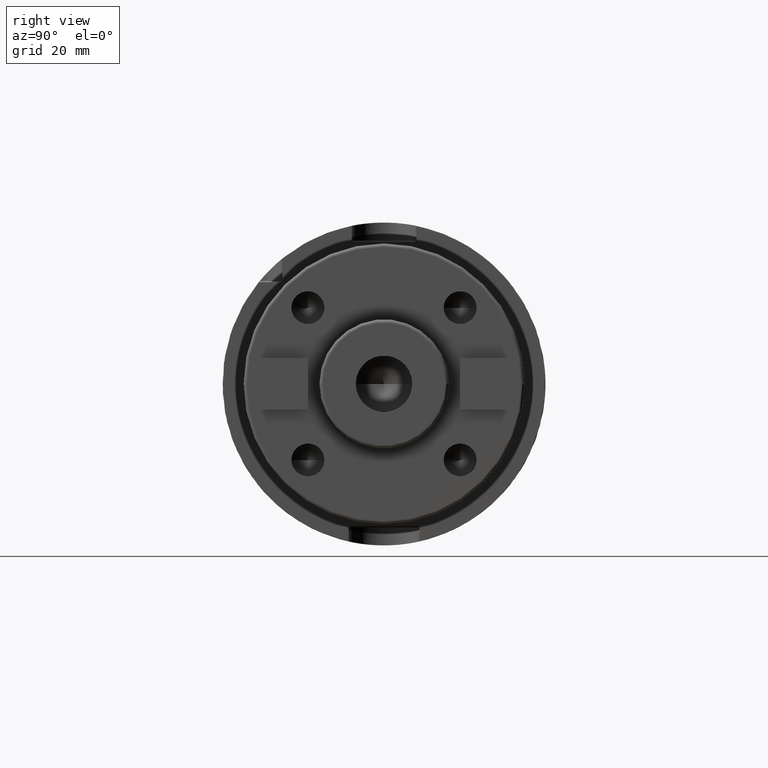
[diagram: clean part render]
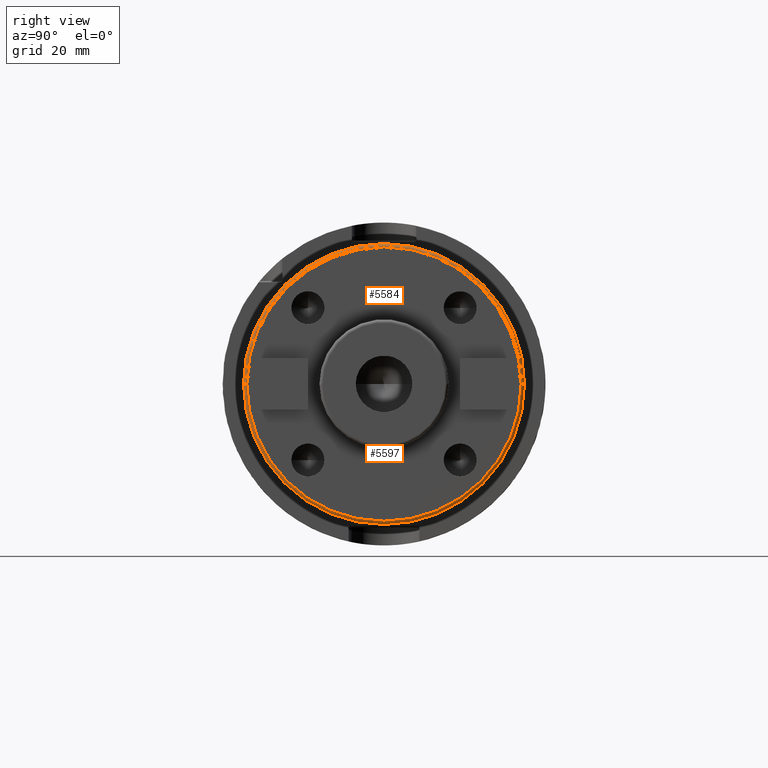
[diagram: same view with one multi-face feature highlighted, each face labeled with its STEP entity id]
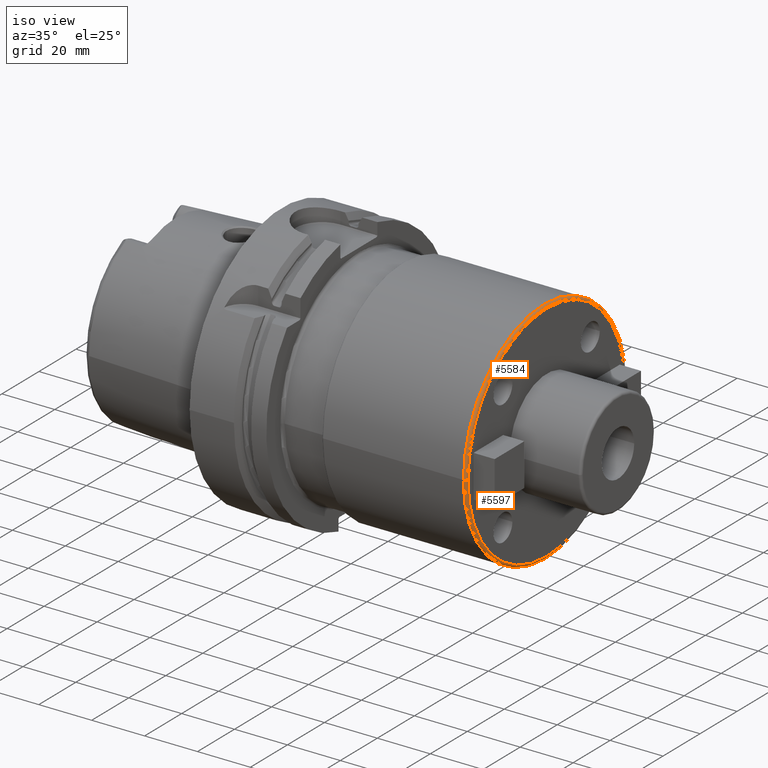
[diagram: same view with one multi-face feature highlighted, each face labeled with its STEP entity id]
A machine part, right view. The highlighted faces form ONE feature: a constant-radius fillet chain: 2 tangent blend faces with common blend radius 1 mm. The faces share edges in the B-rep.
A second angle (iso view) of the same feature is appended — it is thin or edge-on in the first view.
Their STEP definitions:
[1] entity #5584 (Torus):
#1906=CARTESIAN_POINT('',(9.9E1,0.E0,0.E0));
#1907=DIRECTION('',(-1.E0,0.E0,0.E0));
#1908=DIRECTION('',(0.E0,-1.E0,0.E0));
#1909=AXIS2_PLACEMENT_3D('',#1906,#1907,#1908);
#1916=CARTESIAN_POINT('',(9.9E1,-4.25E1,-8.289757769120E-13));
#1917=DIRECTION('',(0.E0,-1.950523076388E-14,1.E0));
#1918=DIRECTION('',(0.E0,-1.E0,-1.950523076388E-14));
#1919=AXIS2_PLACEMENT_3D('',#1916,#1917,#1918);
#1921=CARTESIAN_POINT('',(9.9E1,4.25E1,8.356509928475E-13));
#1922=DIRECTION('',(0.E0,1.966244007889E-14,-1.E0));
#1923=DIRECTION('',(0.E0,1.E0,1.966244007889E-14));
#1924=AXIS2_PLACEMENT_3D('',#1921,#1922,#1923);
#1941=CARTESIAN_POINT('',(1.E2,0.E0,0.E0));
#1942=DIRECTION('',(-1.E0,0.E0,0.E0));
#1943=DIRECTION('',(0.E0,-1.E0,0.E0));
#1944=AXIS2_PLACEMENT_3D('',#1941,#1942,#1943);
#3475=CARTESIAN_POINT('',(9.9E1,4.35E1,0.E0));
#3476=CARTESIAN_POINT('',(9.9E1,-4.35E1,-1.065442715258E-14));
#3477=VERTEX_POINT('',#3475);
#3478=VERTEX_POINT('',#3476);
#3479=CARTESIAN_POINT('',(1.E2,4.25E1,0.E0));
#3480=CARTESIAN_POINT('',(1.E2,-4.25E1,-1.040949779275E-14));
#3481=VERTEX_POINT('',#3479);
#3482=VERTEX_POINT('',#3480);
#5570=CARTESIAN_POINT('',(9.9E1,0.E0,0.E0));
#5571=DIRECTION('',(1.E0,0.E0,0.E0));
#5572=DIRECTION('',(0.E0,-9.999985559381E-1,-1.699447457826E-3));
#5573=AXIS2_PLACEMENT_3D('',#5570,#5571,#5572);
#5574=TOROIDAL_SURFACE('',#5573,4.25E1,1.E0);
#5575=ORIENTED_EDGE('',*,*,#5552,.T.);
#5577=ORIENTED_EDGE('',*,*,#5576,.T.);
#5579=ORIENTED_EDGE('',*,*,#5578,.F.);
#5581=ORIENTED_EDGE('',*,*,#5580,.F.);
#5582=EDGE_LOOP('',(#5575,#5577,#5579,#5581));
#5583=FACE_OUTER_BOUND('',#5582,.F.);
#5584=ADVANCED_FACE('',(#5583),#5574,.T.);
#1910=CIRCLE('',#1909,4.35E1);
#1920=CIRCLE('',#1919,1.E0);
#1925=CIRCLE('',#1924,1.E0);
#1945=CIRCLE('',#1944,4.25E1);
#5552=EDGE_CURVE('',#3478,#3477,#1910,.T.);
#5576=EDGE_CURVE('',#3477,#3481,#1925,.T.);
#5578=EDGE_CURVE('',#3482,#3481,#1945,.T.);
#5580=EDGE_CURVE('',#3478,#3482,#1920,.T.);
[2] entity #5597 (Torus):
#1892=CARTESIAN_POINT('',(9.9E1,0.E0,0.E0));
#1893=DIRECTION('',(-1.E0,0.E0,0.E0));
#1894=DIRECTION('',(0.E0,1.E0,0.E0));
#1895=AXIS2_PLACEMENT_3D('',#1892,#1893,#1894);
#1916=CARTESIAN_POINT('',(9.9E1,-4.25E1,-8.289757769120E-13));
#1917=DIRECTION('',(0.E0,-1.950523076388E-14,1.E0));
#1918=DIRECTION('',(0.E0,-1.E0,-1.950523076388E-14));
#1919=AXIS2_PLACEMENT_3D('',#1916,#1917,#1918);
#1921=CARTESIAN_POINT('',(9.9E1,4.25E1,8.356509928475E-13));
#1922=DIRECTION('',(0.E0,1.966244007889E-14,-1.E0));
#1923=DIRECTION('',(0.E0,1.E0,1.966244007889E-14));
#1924=AXIS2_PLACEMENT_3D('',#1921,#1922,#1923);
#1936=CARTESIAN_POINT('',(1.E2,0.E0,0.E0));
#1937=DIRECTION('',(-1.E0,0.E0,0.E0));
#1938=DIRECTION('',(0.E0,1.E0,0.E0));
#1939=AXIS2_PLACEMENT_3D('',#1936,#1937,#1938);
#3475=CARTESIAN_POINT('',(9.9E1,4.35E1,0.E0));
#3476=CARTESIAN_POINT('',(9.9E1,-4.35E1,-1.065442715258E-14));
#3477=VERTEX_POINT('',#3475);
#3478=VERTEX_POINT('',#3476);
#3479=CARTESIAN_POINT('',(1.E2,4.25E1,0.E0));
#3480=CARTESIAN_POINT('',(1.E2,-4.25E1,-1.040949779275E-14));
#3481=VERTEX_POINT('',#3479);
#3482=VERTEX_POINT('',#3480);
#5585=CARTESIAN_POINT('',(9.9E1,0.E0,0.E0));
#5586=DIRECTION('',(1.E0,0.E0,0.E0));
#5587=DIRECTION('',(0.E0,9.999985559381E-1,1.699447457826E-3));
#5588=AXIS2_PLACEMENT_3D('',#5585,#5586,#5587);
#5589=TOROIDAL_SURFACE('',#5588,4.25E1,1.E0);
#5590=ORIENTED_EDGE('',*,*,#5537,.T.);
#5591=ORIENTED_EDGE('',*,*,#5580,.T.);
#5593=ORIENTED_EDGE('',*,*,#5592,.F.);
#5594=ORIENTED_EDGE('',*,*,#5576,.F.);
#5595=EDGE_LOOP('',(#5590,#5591,#5593,#5594));
#5596=FACE_OUTER_BOUND('',#5595,.F.);
#5597=ADVANCED_FACE('',(#5596),#5589,.T.);
#1896=CIRCLE('',#1895,4.35E1);
#1920=CIRCLE('',#1919,1.E0);
#1925=CIRCLE('',#1924,1.E0);
#1940=CIRCLE('',#1939,4.25E1);
#5537=EDGE_CURVE('',#3477,#3478,#1896,.T.);
#5576=EDGE_CURVE('',#3477,#3481,#1925,.T.);
#5580=EDGE_CURVE('',#3478,#3482,#1920,.T.);
#5592=EDGE_CURVE('',#3481,#3482,#1940,.T.);